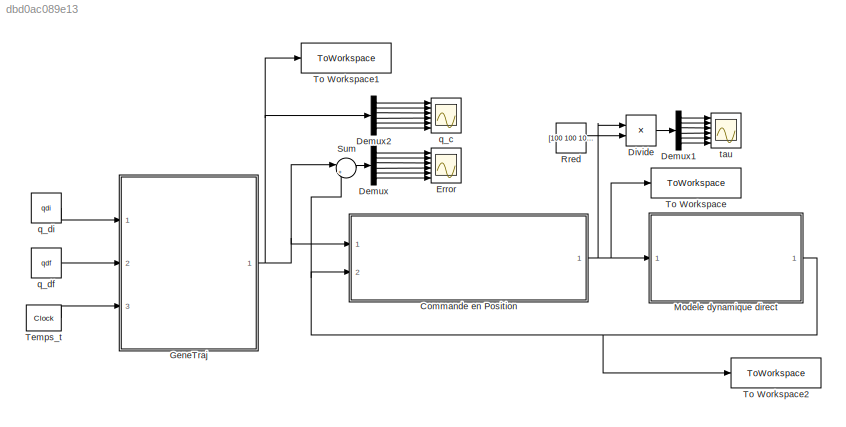
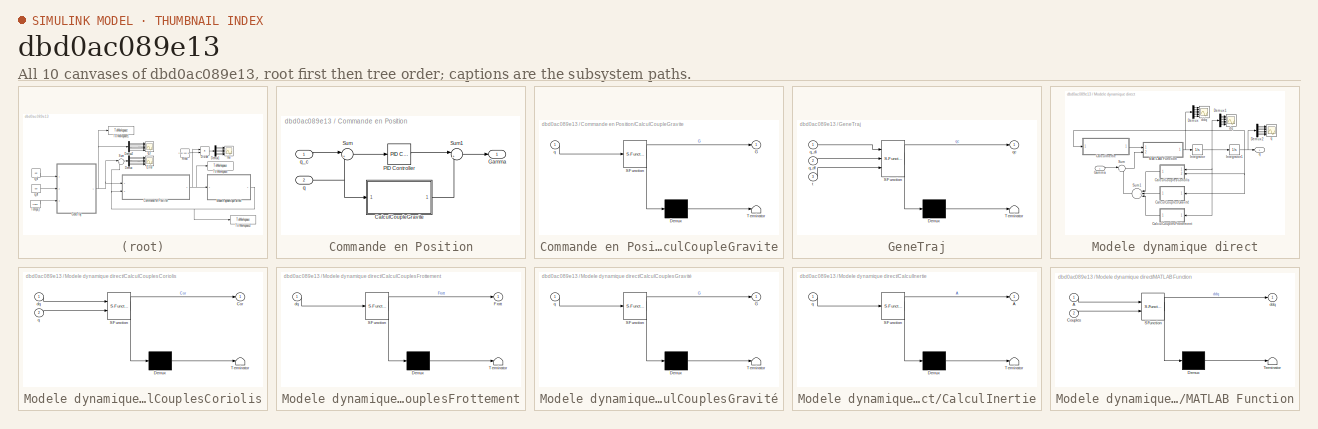
[diagram: thumbnail index - all 10 canvases of the model, root first then tree order]
MODEL slx_dbd0ac089e13
KIND model
CONFIG AbsTol = auto
CONFIG EnableMultiTasking = off
CONFIG FixedStep = auto
CONFIG MaxStep = auto
CONFIG MinStep = auto
CONFIG RelTol = 1e-3
CONFIG SampleTimeConstraint = Unconstrained
CONFIG Solver = VariableStepAuto
CONFIG SolverName = VariableStepAuto
CONFIG StartTime = 0.0
CONFIG StopTime = 500
BLOCK [SubSystem] Commande en Position
  Ports = [2, 1]
  RequestExecContextInheritance = off
BLOCK [SubSystem] Commande en Position/CalculCoupleGravite
  ErrorFcn = Stateflow.Translate.translate
  PermitHierarchicalResolution = ExplicitOnly
  Ports = [1, 1]
  RequestExecContextInheritance = off
  SFBlockType = MATLAB Function
  TreatAsAtomicUnit = on
BLOCK [Demux] Commande en Position/CalculCoupleGravite/ Demux 
  Outputs = 1
  Ports = [1, 1]
BLOCK [S-Function] Commande en Position/CalculCoupleGravite/ SFunction 
  EnableBusSupport = on
  FunctionName = sf_sfun
  PortCounts = [1 2]
  Ports = [1, 2]
  SFcnIsStateOwnerBlock = off
  SFunctionDeploymentMode = off
  Tag = Stateflow S-Function 1
BLOCK [Terminator] Commande en Position/CalculCoupleGravite/ Terminator 
BLOCK [Outport] Commande en Position/CalculCoupleGravite/G
  IconDisplay = Port number
BLOCK [Inport] Commande en Position/CalculCoupleGravite/q
  IconDisplay = Port number
BLOCK [Outport] Commande en Position/Gamma
  IconDisplay = Port number
BLOCK [Reference] Commande en Position/PID Controller  REF=simulink/Continuous/PID Controller
  Ports = [1, 1]
  SourceBlock = simulink/Continuous/PID Controller
  SourceProductBaseCode = SL
  SourceProductName = Simulink
  SourceType = PID 1dof
BLOCK [Sum] Commande en Position/Sum
  IconShape = round
  InputSameDT = off
  Inputs = |+-
  OutDataTypeStr = Inherit: Inherit via internal rule
  Ports = [2, 1]
  SaturateOnIntegerOverflow = off
BLOCK [Sum] Commande en Position/Sum1
  IconShape = round
  InputSameDT = off
  Inputs = |++
  OutDataTypeStr = Inherit: Inherit via internal rule
  Ports = [2, 1]
  SaturateOnIntegerOverflow = off
BLOCK [Inport] Commande en Position/q
  IconDisplay = Port number
  Port = 2
BLOCK [Inport] Commande en Position/q_c
  IconDisplay = Port number
BLOCK [Demux] Demux
  DisplayOption = bar
  Outputs = 6
  Ports = [1, 6]
BLOCK [Demux] Demux1
  DisplayOption = bar
  Outputs = 6
  Ports = [1, 6]
BLOCK [Demux] Demux2
  DisplayOption = bar
  Outputs = 6
  Ports = [1, 6]
BLOCK [Product] Divide
  InputSameDT = off
  Inputs = */
  OutDataTypeStr = Inherit: Inherit via internal rule
  Ports = [2, 1]
  RndMeth = Floor
  SaturateOnIntegerOverflow = off
BLOCK [Scope] Error
  Floating = off
  NumInputPorts = 6
  Ports = [6]
  ScopeSpecificationString = Simulink.scopes.TimeScopeBlockCfg('CurrentConfiguration', extmgr.ConfigurationSet(extmgr.Configuration('Core','General UI',true),extmgr.Configuration('Core','Source UI',true),extmgr.Configuration('Sources','WiredSimulink',true),extmgr.Configuration('Visuals','Time Domain',true,'TimeAxisLabels','All','SerializedDisplays',{struct('MinYLimReal','-0.00467','MaxYLimReal','0.04199','YLabelReal','rad','M...<+4887ch>
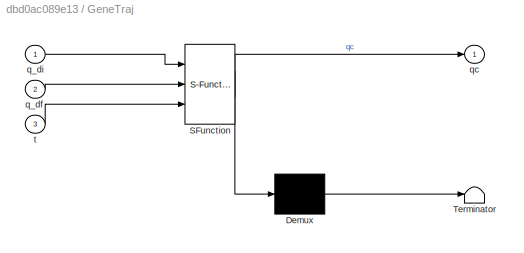
BLOCK [SubSystem] GeneTraj
  ErrorFcn = Stateflow.Translate.translate
  PermitHierarchicalResolution = ExplicitOnly
  Ports = [3, 1]
  RequestExecContextInheritance = off
  SFBlockType = MATLAB Function
  TreatAsAtomicUnit = on
BLOCK [Demux] GeneTraj/ Demux 
  Outputs = 1
  Ports = [1, 1]
BLOCK [S-Function] GeneTraj/ SFunction 
  EnableBusSupport = on
  FunctionName = sf_sfun
  PortCounts = [3 2]
  Ports = [3, 2]
  SFcnIsStateOwnerBlock = off
  SFunctionDeploymentMode = off
  Tag = Stateflow S-Function 2
BLOCK [Terminator] GeneTraj/ Terminator 
BLOCK [Inport] GeneTraj/q_df
  IconDisplay = Port number
  Port = 2
BLOCK [Inport] GeneTraj/q_di
  IconDisplay = Port number
BLOCK [Outport] GeneTraj/qc
  IconDisplay = Port number
BLOCK [Inport] GeneTraj/t
  IconDisplay = Port number
  Port = 3
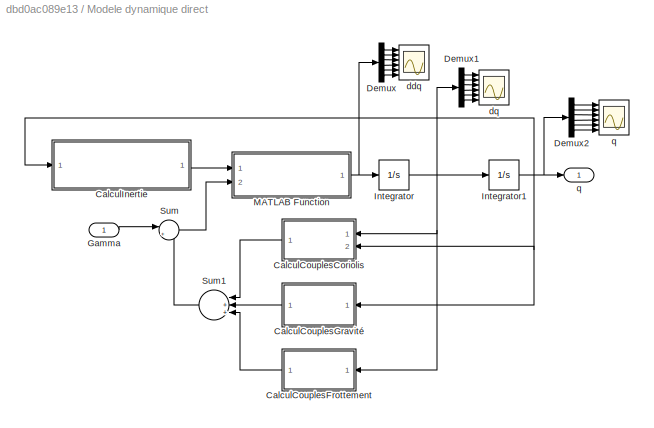
BLOCK [SubSystem] Modele dynamique direct
  Ports = [1, 1]
  RequestExecContextInheritance = off
BLOCK [SubSystem] Modele dynamique direct/CalculCouplesCoriolis
  ErrorFcn = Stateflow.Translate.translate
  PermitHierarchicalResolution = ExplicitOnly
  Ports = [2, 1]
  RequestExecContextInheritance = off
  SFBlockType = MATLAB Function
  TreatAsAtomicUnit = on
BLOCK [Demux] Modele dynamique direct/CalculCouplesCoriolis/ Demux 
  Outputs = 1
  Ports = [1, 1]
BLOCK [S-Function] Modele dynamique direct/CalculCouplesCoriolis/ SFunction 
  EnableBusSupport = on
  FunctionName = sf_sfun
  PortCounts = [2 2]
  Ports = [2, 2]
  SFcnIsStateOwnerBlock = off
  SFunctionDeploymentMode = off
  Tag = Stateflow S-Function 3
BLOCK [Terminator] Modele dynamique direct/CalculCouplesCoriolis/ Terminator 
BLOCK [Outport] Modele dynamique direct/CalculCouplesCoriolis/Cor
  IconDisplay = Port number
BLOCK [Inport] Modele dynamique direct/CalculCouplesCoriolis/dq
  IconDisplay = Port number
BLOCK [Inport] Modele dynamique direct/CalculCouplesCoriolis/q
  IconDisplay = Port number
  Port = 2
BLOCK [SubSystem] Modele dynamique direct/CalculCouplesFrottement
  ErrorFcn = Stateflow.Translate.translate
  PermitHierarchicalResolution = ExplicitOnly
  Ports = [1, 1]
  RequestExecContextInheritance = off
  SFBlockType = MATLAB Function
  TreatAsAtomicUnit = on
BLOCK [Demux] Modele dynamique direct/CalculCouplesFrottement/ Demux 
  Outputs = 1
  Ports = [1, 1]
BLOCK [S-Function] Modele dynamique direct/CalculCouplesFrottement/ SFunction 
  EnableBusSupport = on
  FunctionName = sf_sfun
  PortCounts = [1 2]
  Ports = [1, 2]
  SFcnIsStateOwnerBlock = off
  SFunctionDeploymentMode = off
  Tag = Stateflow S-Function 7
BLOCK [Terminator] Modele dynamique direct/CalculCouplesFrottement/ Terminator 
BLOCK [Outport] Modele dynamique direct/CalculCouplesFrottement/Frott
  IconDisplay = Port number
BLOCK [Inport] Modele dynamique direct/CalculCouplesFrottement/dq
  IconDisplay = Port number
BLOCK [SubSystem] Modele dynamique direct/CalculCouplesGravité
  ErrorFcn = Stateflow.Translate.translate
  PermitHierarchicalResolution = ExplicitOnly
  Ports = [1, 1]
  RequestExecContextInheritance = off
  SFBlockType = MATLAB Function
  TreatAsAtomicUnit = on
BLOCK [Demux] Modele dynamique direct/CalculCouplesGravité/ Demux 
  Outputs = 1
  Ports = [1, 1]
BLOCK [S-Function] Modele dynamique direct/CalculCouplesGravité/ SFunction 
  EnableBusSupport = on
  FunctionName = sf_sfun
  PortCounts = [1 2]
  Ports = [1, 2]
  SFcnIsStateOwnerBlock = off
  SFunctionDeploymentMode = off
  Tag = Stateflow S-Function 6
BLOCK [Terminator] Modele dynamique direct/CalculCouplesGravité/ Terminator 
BLOCK [Outport] Modele dynamique direct/CalculCouplesGravité/G
  IconDisplay = Port number
BLOCK [Inport] Modele dynamique direct/CalculCouplesGravité/q
  IconDisplay = Port number
BLOCK [SubSystem] Modele dynamique direct/CalculInertie
  ErrorFcn = Stateflow.Translate.translate
  PermitHierarchicalResolution = ExplicitOnly
  Ports = [1, 1]
  RequestExecContextInheritance = off
  SFBlockType = MATLAB Function
  TreatAsAtomicUnit = on
BLOCK [Demux] Modele dynamique direct/CalculInertie/ Demux 
  Outputs = 1
  Ports = [1, 1]
BLOCK [S-Function] Modele dynamique direct/CalculInertie/ SFunction 
  EnableBusSupport = on
  FunctionName = sf_sfun
  PortCounts = [1 2]
  Ports = [1, 2]
  SFcnIsStateOwnerBlock = off
  SFunctionDeploymentMode = off
  Tag = Stateflow S-Function 4
BLOCK [Terminator] Modele dynamique direct/CalculInertie/ Terminator 
BLOCK [Outport] Modele dynamique direct/CalculInertie/A
  IconDisplay = Port number
BLOCK [Inport] Modele dynamique direct/CalculInertie/q
  IconDisplay = Port number
BLOCK [Demux] Modele dynamique direct/Demux
  DisplayOption = bar
  Outputs = 6
  Ports = [1, 6]
BLOCK [Demux] Modele dynamique direct/Demux1
  DisplayOption = bar
  Outputs = 6
  Ports = [1, 6]
BLOCK [Demux] Modele dynamique direct/Demux2
  DisplayOption = bar
  Outputs = 6
  Ports = [1, 6]
BLOCK [Inport] Modele dynamique direct/Gamma
  IconDisplay = Port number
BLOCK [Integrator] Modele dynamique direct/Integrator
  Ports = [1, 1]
BLOCK [Integrator] Modele dynamique direct/Integrator1
  InitialCondition = [-1 0 -1 -1 -1 -1]'
  Ports = [1, 1]
BLOCK [SubSystem] Modele dynamique direct/MATLAB Function
  ErrorFcn = Stateflow.Translate.translate
  PermitHierarchicalResolution = ExplicitOnly
  Ports = [2, 1]
  RequestExecContextInheritance = off
  SFBlockType = MATLAB Function
  TreatAsAtomicUnit = on
BLOCK [Demux] Modele dynamique direct/MATLAB Function/ Demux 
  Outputs = 1
  Ports = [1, 1]
BLOCK [S-Function] Modele dynamique direct/MATLAB Function/ SFunction 
  EnableBusSupport = on
  FunctionName = sf_sfun
  PortCounts = [2 2]
  Ports = [2, 2]
  SFcnIsStateOwnerBlock = off
  SFunctionDeploymentMode = off
  Tag = Stateflow S-Function 5
BLOCK [Terminator] Modele dynamique direct/MATLAB Function/ Terminator 
BLOCK [Inport] Modele dynamique direct/MATLAB Function/A
  IconDisplay = Port number
BLOCK [Inport] Modele dynamique direct/MATLAB Function/Couples
  IconDisplay = Port number
  Port = 2
BLOCK [Outport] Modele dynamique direct/MATLAB Function/ddq
  IconDisplay = Port number
BLOCK [Sum] Modele dynamique direct/Sum
  IconShape = round
  InputSameDT = off
  Inputs = |+-
  OutDataTypeStr = Inherit: Inherit via internal rule
  Ports = [2, 1]
  SaturateOnIntegerOverflow = off
BLOCK [Sum] Modele dynamique direct/Sum1
  IconShape = round
  InputSameDT = off
  Inputs = |+++|
  OutDataTypeStr = Inherit: Inherit via internal rule
  Ports = [3, 1]
  SaturateOnIntegerOverflow = off
BLOCK [Scope] Modele dynamique direct/ddq 
  Floating = off
  NumInputPorts = 6
  Ports = [6]
  ScopeSpecificationString = Simulink.scopes.TimeScopeBlockCfg('CurrentConfiguration', extmgr.ConfigurationSet(extmgr.Configuration('Core','General UI',true),extmgr.Configuration('Core','Source UI',true),extmgr.Configuration('Sources','WiredSimulink',true,'DataLoggingVariableName','ScopeData2'),extmgr.Configuration('Visuals','Time Domain',true,'TimeAxisLabels','All','SerializedDisplays',{struct('MinYLimReal','-0.000029','MaxY...<+4856ch>
BLOCK [Scope] Modele dynamique direct/dq
  Floating = off
  NumInputPorts = 6
  Ports = [6]
  ScopeSpecificationString = Simulink.scopes.TimeScopeBlockCfg('CurrentConfiguration', extmgr.ConfigurationSet(extmgr.Configuration('Core','General UI',true),extmgr.Configuration('Core','Source UI',true),extmgr.Configuration('Sources','WiredSimulink',true,'DataLoggingVariableName','ScopeData1'),extmgr.Configuration('Visuals','Time Domain',true,'TimeAxisLabels','All','SerializedDisplays',{struct('MinYLimReal','-0.00047','MaxYL...<+4814ch>
BLOCK [Outport] Modele dynamique direct/q
  IconDisplay = Port number
BLOCK [Scope] Modele dynamique direct/q 
  Floating = off
  NumInputPorts = 6
  Ports = [6]
  ScopeSpecificationString = Simulink.scopes.TimeScopeBlockCfg('CurrentConfiguration', extmgr.ConfigurationSet(extmgr.Configuration('Core','General UI',true),extmgr.Configuration('Core','Source UI',true),extmgr.Configuration('Sources','WiredSimulink',true,'DataLoggingVariableName','ScopeData2'),extmgr.Configuration('Visuals','Time Domain',true,'TimeAxisLabels','All','SerializedDisplays',{struct('MinYLimReal','-1.12495','MaxYL...<+4801ch>
BLOCK [Constant] Rred
  Value = [100 100 100 70 70 70]
BLOCK [Sum] Sum
  IconShape = round
  InputSameDT = off
  Inputs = |+-
  OutDataTypeStr = Inherit: Inherit via internal rule
  Ports = [2, 1]
  SaturateOnIntegerOverflow = off
BLOCK [Clock] Temps_t 
  Decimation = 1
BLOCK [ToWorkspace] To Workspace
  FixptAsFi = on
  MaxDataPoints = inf
  Ports = [1]
  SampleTime = -1
  SaveFormat = Timeseries
  VariableName = Gamma
BLOCK [ToWorkspace] To Workspace1
  FixptAsFi = on
  MaxDataPoints = inf
  Ports = [1]
  SampleTime = -1
  SaveFormat = Timeseries
  VariableName = qc
BLOCK [ToWorkspace] To Workspace2
  FixptAsFi = on
  MaxDataPoints = inf
  Ports = [1]
  SampleTime = -1
  SaveFormat = Timeseries
  VariableName = q
BLOCK [Scope] q_c
  Floating = off
  NumInputPorts = 6
  Ports = [6]
  ScopeSpecificationString = Simulink.scopes.TimeScopeBlockCfg('CurrentConfiguration', extmgr.ConfigurationSet(extmgr.Configuration('Core','General UI',true),extmgr.Configuration('Core','Source UI',true),extmgr.Configuration('Sources','WiredSimulink',true,'DataLoggingVariableName','ScopeData3'),extmgr.Configuration('Visuals','Time Domain',true,'SerializedDisplays',{struct('MinYLimReal','-1.25','MaxYLimReal','1.25','YLabelReal...<+1431ch>
BLOCK [Constant] q_df 
  Value = qdf
  VectorParams1D = off
BLOCK [Constant] q_di
  Value = qdi
  VectorParams1D = off
BLOCK [Scope] tau
  Floating = off
  NumInputPorts = 6
  Ports = [6]
  ScopeSpecificationString = Simulink.scopes.TimeScopeBlockCfg('CurrentConfiguration', extmgr.ConfigurationSet(extmgr.Configuration('Core','General UI',true),extmgr.Configuration('Core','Source UI',true),extmgr.Configuration('Sources','WiredSimulink',true,'DataLoggingVariableName','ScopeData4'),extmgr.Configuration('Visuals','Time Domain',true,'TimeAxisLabels','All','SerializedDisplays',{struct('MinYLimReal','-0.00005','MaxYL...<+4976ch>
LINE Commande en Position/CalculCoupleGravite:1 -> Commande en Position/Sum1:2
LINE Commande en Position/PID Controller:1 -> Commande en Position/Sum1:1
LINE Commande en Position/Sum1:1 -> Commande en Position/Gamma:1
LINE Commande en Position/Sum:1 -> Commande en Position/PID Controller:1
NET Commande en Position/q:1 -> Commande en Position/CalculCoupleGravite:1, Commande en Position/Sum:2
LINE Commande en Position/q_c:1 -> Commande en Position/Sum:1
NET Commande en Position:1 -> Divide:1, Modele dynamique direct:1, To Workspace:1
LINE Demux1:1 -> tau:1
LINE Demux1:2 -> tau:2
LINE Demux1:3 -> tau:3
LINE Demux1:4 -> tau:4
LINE Demux1:5 -> tau:5
LINE Demux1:6 -> tau:6
LINE Demux2:1 -> q_c:1
LINE Demux2:2 -> q_c:2
LINE Demux2:3 -> q_c:3
LINE Demux2:4 -> q_c:4
LINE Demux2:5 -> q_c:5
LINE Demux2:6 -> q_c:6
LINE Demux:1 -> Error:1
LINE Demux:2 -> Error:2
LINE Demux:3 -> Error:3
LINE Demux:4 -> Error:4
LINE Demux:5 -> Error:5
LINE Demux:6 -> Error:6
LINE Divide:1 -> Demux1:1
NET GeneTraj:1 -> Commande en Position:1, Demux2:1, Sum:1, To Workspace1:1
LINE Modele dynamique direct/CalculCouplesCoriolis:1 -> Modele dynamique direct/Sum1:1
LINE Modele dynamique direct/CalculCouplesFrottement:1 -> Modele dynamique direct/Sum1:3
LINE Modele dynamique direct/CalculCouplesGravité:1 -> Modele dynamique direct/Sum1:2
LINE Modele dynamique direct/CalculInertie:1 -> Modele dynamique direct/MATLAB Function:1
LINE Modele dynamique direct/Demux1:1 -> Modele dynamique direct/dq:1
LINE Modele dynamique direct/Demux1:2 -> Modele dynamique direct/dq:2
LINE Modele dynamique direct/Demux1:3 -> Modele dynamique direct/dq:3
LINE Modele dynamique direct/Demux1:4 -> Modele dynamique direct/dq:4
LINE Modele dynamique direct/Demux1:5 -> Modele dynamique direct/dq:5
LINE Modele dynamique direct/Demux1:6 -> Modele dynamique direct/dq:6
LINE Modele dynamique direct/Demux2:1 -> Modele dynamique direct/q :1
LINE Modele dynamique direct/Demux2:2 -> Modele dynamique direct/q :2
LINE Modele dynamique direct/Demux2:3 -> Modele dynamique direct/q :3
LINE Modele dynamique direct/Demux2:4 -> Modele dynamique direct/q :4
LINE Modele dynamique direct/Demux2:5 -> Modele dynamique direct/q :5
LINE Modele dynamique direct/Demux2:6 -> Modele dynamique direct/q :6
LINE Modele dynamique direct/Demux:1 -> Modele dynamique direct/ddq :1
LINE Modele dynamique direct/Demux:2 -> Modele dynamique direct/ddq :2
LINE Modele dynamique direct/Demux:3 -> Modele dynamique direct/ddq :3
LINE Modele dynamique direct/Demux:4 -> Modele dynamique direct/ddq :4
LINE Modele dynamique direct/Demux:5 -> Modele dynamique direct/ddq :5
LINE Modele dynamique direct/Demux:6 -> Modele dynamique direct/ddq :6
LINE Modele dynamique direct/Gamma:1 -> Modele dynamique direct/Sum:1
NET Modele dynamique direct/Integrator1:1 -> Modele dynamique direct/CalculCouplesCoriolis:2, Modele dynamique direct/CalculCouplesGravité:1, Modele dynamique direct/CalculInertie:1, Modele dynamique direct/Demux2:1, Modele dynamique direct/q:1
NET Modele dynamique direct/Integrator:1 -> Modele dynamique direct/CalculCouplesCoriolis:1, Modele dynamique direct/CalculCouplesFrottement:1, Modele dynamique direct/Demux1:1, Modele dynamique direct/Integrator1:1
NET Modele dynamique direct/MATLAB Function:1 -> Modele dynamique direct/Demux:1, Modele dynamique direct/Integrator:1
LINE Modele dynamique direct/Sum1:1 -> Modele dynamique direct/Sum:2
LINE Modele dynamique direct/Sum:1 -> Modele dynamique direct/MATLAB Function:2
NET Modele dynamique direct:1 -> Commande en Position:2, Sum:2, To Workspace2:1
LINE Rred:1 -> Divide:2
LINE Sum:1 -> Demux:1
LINE Temps_t :1 -> GeneTraj:3
LINE q_df :1 -> GeneTraj:2
LINE q_di:1 -> GeneTraj:1
note: NET lines group one-source signal fan-out (src -> all destinations, sorted); 1:1 wires keep LINE
CHART Commande en Position/CalculCoupleGravite states=1 transitions=1
  STATE_LABEL 'eML_blk_kernel()'
  STATE_LABEL 'SCRIPT:\nfunction G = CalculCoupleGravite(q)\n\n    %Parametres\n    m=[15 10 1 7 1 0.5];\n    x_G1 = 0; y_G1 = 0; z_G1 = -0.25;\n    x_G2 = 0.35; y_G2 = 0; z_G2 = 0;\n    x_G3 = 0; y_G3 = -0.1; z_G3 = 0;\n    x_G4 = 0; y_G4 = 0; z_G4 = 0;\n    x_G5 = 0; y_G5 = 0; z_G5 = 0;\n    x_G6 = 0; y_G6 = 0; z_G6 = 0;\n    x_G = [x_G1 x_G2 x_G3 x_G4 x_G5 x_G6];\n    y_G = [y_G1 y_G2 y_G3 y_G4 y_G5 y_G6];\n    z_G = [z_G...<+541ch>'
CHART GeneTraj states=1 transitions=1
  STATE_LABEL 'eML_blk_kernel()'
  STATE_LABEL 'SCRIPT:\nfunction qc = GeneTraj(q_di, q_df, t)\n    \n    tf = 500;\n     \n    D = (q_df - q_di);\n    \n    r = 10 * (t/tf)^3 - 15 * (t/tf)^4 + 6 * (t/tf)^5;\n    \n    qc = q_di + r*D;\nend\n'
CHART Modele dynamique direct/CalculCouplesCoriolis states=1 transitions=1
  STATE_LABEL 'eML_blk_kernel()'
  STATE_LABEL "SCRIPT:\nfunction Cor = fcn(dq, q)\n\n    Cor = CalculCoupleCoriolisCentrifuge(q, dq)'; \n\nend"
CHART Modele dynamique direct/CalculInertie states=1 transitions=1
  STATE_LABEL 'eML_blk_kernel()'
  STATE_LABEL "SCRIPT:\nfunction A = CalculMatriceInertie(q)\n\n\n    %Parametres\n    m=[15 10 1 7 1 0.5];\n    \n    x_G1 = 0; y_G1 = 0; z_G1 = -0.25;\n    x_G2 = 0.35; y_G2 = 0; z_G2 = 0;\n    x_G3 = 0; y_G3 = -0.1; z_G3 = 0;\n    x_G4 = 0; y_G4 = 0; z_G4 = 0;\n    x_G5 = 0; y_G5 = 0; z_G5 = 0;\n    x_G6 = 0; y_G6 = 0; z_G6 = 0;\n    x_G = [x_G1 x_G2 x_G3 x_G4 x_G5 x_G6]';\n    y_G = [y_G1 y_G2 y_G3 y_G4 y_G5 y_G6]';\n    z...<+1829ch>"
CHART Modele dynamique direct/MATLAB Function states=1 transitions=1
  STATE_LABEL 'eML_blk_kernel()'
  STATE_LABEL 'SCRIPT:\nfunction ddq = fcn(A, Couples)\n\nddq = inv(A)*Couples;\nend\n'
CHART Modele dynamique direct/CalculCouplesGravité states=1 transitions=1
  STATE_LABEL 'eML_blk_kernel()'
  STATE_LABEL 'SCRIPT:\nfunction G = fcn(q)\n    \n    G = CalculCoupleGravite(q);\n\nend'
CHART Modele dynamique direct/CalculCouplesFrottement states=1 transitions=1
  STATE_LABEL 'eML_blk_kernel()'
  STATE_LABEL 'SCRIPT:\nfunction Frott = fcn(dq)\n\n    Frott = CalculCoupleFrottement(dq);\n   \nend'
